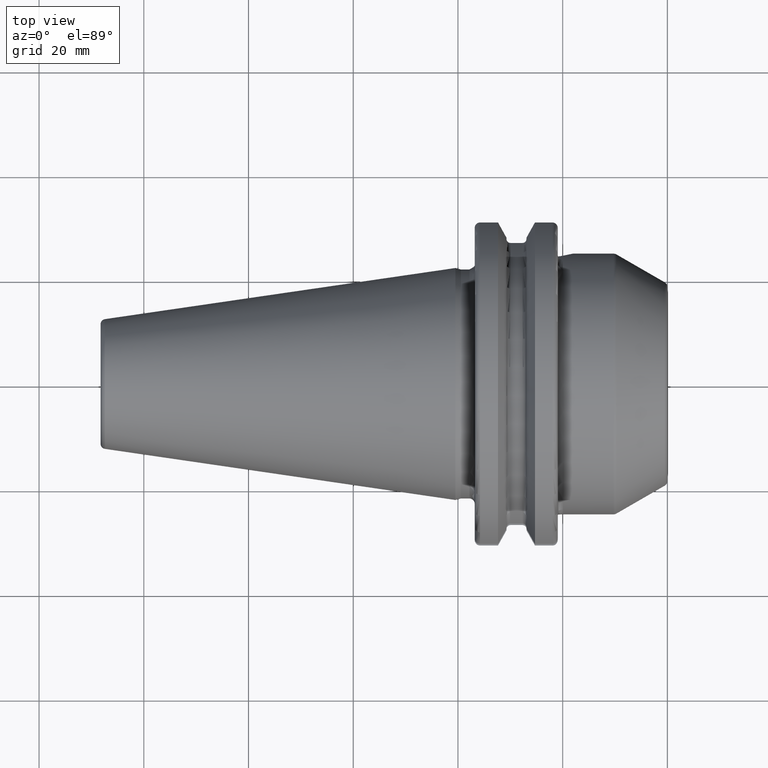
[diagram: clean part render]
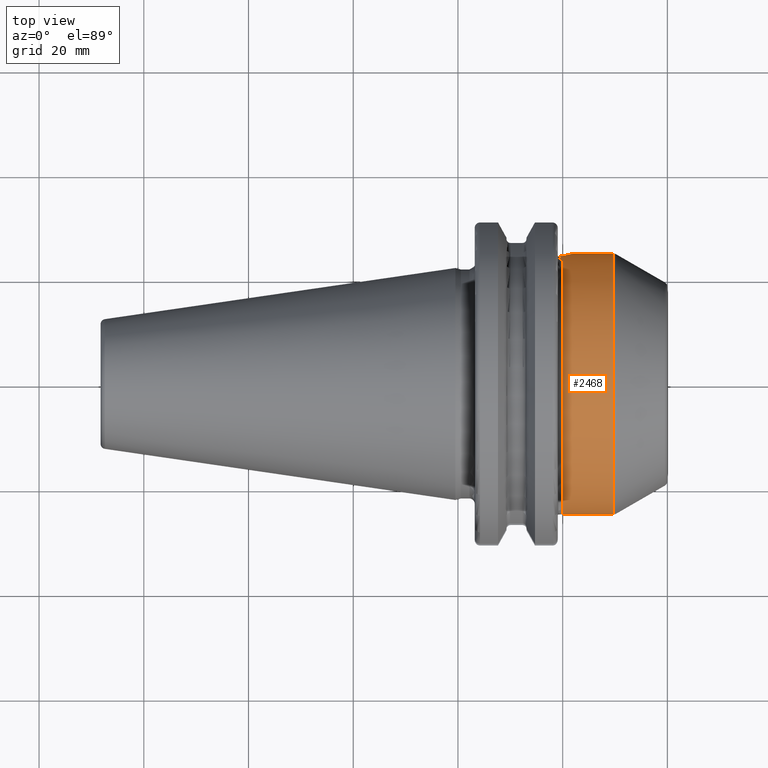
[diagram: same view with one face highlighted and labeled with its STEP entity id]
A machine part, top view. The second image highlights one B-rep face of the part: STEP entity #2468.
In plain terms, the highlighted cylindrical surface (partial cylindrical patch) has radius 24.9 mm, axis along (1, 0, 0).
Its self-contained STEP definition (entity closure, byte-faithful):
#162=DIRECTION('',(-1.E0,0.E0,1.857193474323E-12));
#163=VECTOR('',#162,1.068205080757E1);
#164=CARTESIAN_POINT('',(2.973205080757E1,-2.49E1,-1.984066796590E-11));
#165=LINE('',#164,#163);
#171=DIRECTION('',(-1.E0,0.E0,-2.565733391014E-12));
#172=VECTOR('',#171,7.732050807569E0);
#173=CARTESIAN_POINT('',(2.973205080757E1,2.49E1,1.983990562326E-11));
#174=LINE('',#173,#172);
#175=CARTESIAN_POINT('',(1.905E1,0.E0,0.E0));
#176=DIRECTION('',(1.E0,0.E0,0.E0));
#177=DIRECTION('',(0.E0,-9.979919678715E-1,6.334060359674E-2));
#178=AXIS2_PLACEMENT_3D('',#175,#176,#177);
#198=CARTESIAN_POINT('',(1.905E1,0.E0,0.E0));
#199=DIRECTION('',(1.E0,0.E0,0.E0));
#200=DIRECTION('',(0.E0,9.733571980999E-1,2.292940577229E-1));
#201=AXIS2_PLACEMENT_3D('',#198,#199,#200);
#632=CARTESIAN_POINT('',(2.2E1,2.49E1,0.E0));
#633=CARTESIAN_POINT('',(2.2E1,2.49E1,3.650517726991E-1));
#634=CARTESIAN_POINT('',(2.194412745393E1,2.488419312650E1,1.089351231064E0));
#635=CARTESIAN_POINT('',(2.168346431547E1,2.481217217386E1,2.178293057502E0));
#636=CARTESIAN_POINT('',(2.125802597206E1,2.470006127085E1,3.201900799074E0));
#637=CARTESIAN_POINT('',(2.066488670929E1,2.455525266269E1,4.163557798377E0));
#638=CARTESIAN_POINT('',(1.992834271622E1,2.439459594085E1,5.012603444579E0));
#639=CARTESIAN_POINT('',(1.935741147151E1,2.428796351534E1,5.491358553552E0));
#640=CARTESIAN_POINT('',(1.905E1,2.423659423269E1,5.709422037299E0));
#642=CARTESIAN_POINT('',(2.973205080757E1,0.E0,0.E0));
#643=DIRECTION('',(-1.E0,0.E0,0.E0));
#644=DIRECTION('',(0.E0,-1.E0,0.E0));
#645=AXIS2_PLACEMENT_3D('',#642,#643,#644);
#647=DIRECTION('',(-1.E0,0.E0,3.086420008458E-14));
#648=VECTOR('',#647,1.E0);
#649=CARTESIAN_POINT('',(2.005E1,-2.485E1,1.577181029559E0));
#650=LINE('',#649,#648);
#651=DIRECTION('',(-1.E0,0.E0,0.E0));
#652=VECTOR('',#651,1.E0);
#653=CARTESIAN_POINT('',(2.005E1,2.354570024442E1,8.1E0));
#654=LINE('',#653,#652);
#999=CARTESIAN_POINT('',(2.005E1,0.E0,0.E0));
#1000=DIRECTION('',(1.E0,0.E0,0.E0));
#1001=DIRECTION('',(0.E0,9.456104515831E-1,3.253012048193E-1));
#1002=AXIS2_PLACEMENT_3D('',#999,#1000,#1001);
#1004=CARTESIAN_POINT('',(2.005E1,-2.485E1,1.577181029559E0));
#1678=CARTESIAN_POINT('',(2.973205080757E1,2.49E1,0.E0));
#1679=CARTESIAN_POINT('',(2.973205080757E1,-2.49E1,0.E0));
#1680=VERTEX_POINT('',#1678);
#1681=VERTEX_POINT('',#1679);
#1703=VERTEX_POINT('',#632);
#1704=VERTEX_POINT('',#640);
#1714=CARTESIAN_POINT('',(2.005E1,2.354570024442E1,8.1E0));
#1715=CARTESIAN_POINT('',(1.905E1,2.354570024442E1,8.1E0));
#1716=VERTEX_POINT('',#1714);
#1717=VERTEX_POINT('',#1715);
#1726=VERTEX_POINT('',#1004);
#1730=CARTESIAN_POINT('',(1.905E1,-2.49E1,0.E0));
#1731=VERTEX_POINT('',#1730);
#1732=CARTESIAN_POINT('',(1.905E1,-2.485E1,1.577181029559E0));
#1733=VERTEX_POINT('',#1732);
#2449=CARTESIAN_POINT('',(1.80025E1,0.E0,0.E0));
#2450=DIRECTION('',(1.E0,0.E0,0.E0));
#2451=DIRECTION('',(0.E0,-1.E0,0.E0));
#2452=AXIS2_PLACEMENT_3D('',#2449,#2450,#2451);
#2453=CYLINDRICAL_SURFACE('',#2452,2.49E1);
#2455=ORIENTED_EDGE('',*,*,#2454,.F.);
#2456=ORIENTED_EDGE('',*,*,#1957,.F.);
#2458=ORIENTED_EDGE('',*,*,#2457,.F.);
#2459=ORIENTED_EDGE('',*,*,#1953,.T.);
#2460=ORIENTED_EDGE('',*,*,#1969,.F.);
#2461=ORIENTED_EDGE('',*,*,#2024,.F.);
#2463=ORIENTED_EDGE('',*,*,#2462,.F.);
#2464=ORIENTED_EDGE('',*,*,#2418,.T.);
#2465=ORIENTED_EDGE('',*,*,#1995,.F.);
#2466=EDGE_LOOP('',(#2455,#2456,#2458,#2459,#2460,#2461,#2463,#2464,#2465));
#2467=FACE_OUTER_BOUND('',#2466,.F.);
#2468=ADVANCED_FACE('',(#2467),#2453,.T.);
#179=CIRCLE('',#178,2.49E1);
#202=CIRCLE('',#201,2.49E1);
#641=B_SPLINE_CURVE_WITH_KNOTS('',3,(#632,#633,#634,#635,#636,#637,#638,#639,
#640),.UNSPECIFIED.,.F.,.F.,(4,1,1,1,1,1,4),(0.E0,1.666666666667E-1,
3.333333333333E-1,5.E-1,6.666666666667E-1,8.333333333333E-1,1.E0),
.UNSPECIFIED.);
#646=CIRCLE('',#645,2.49E1);
#1003=CIRCLE('',#1002,2.49E1);
#1953=EDGE_CURVE('',#1681,#1731,#165,.T.);
#1957=EDGE_CURVE('',#1680,#1703,#174,.T.);
#1969=EDGE_CURVE('',#1733,#1731,#179,.T.);
#1995=EDGE_CURVE('',#1704,#1717,#202,.T.);
#2024=EDGE_CURVE('',#1726,#1733,#650,.T.);
#2418=EDGE_CURVE('',#1716,#1717,#654,.T.);
#2454=EDGE_CURVE('',#1703,#1704,#641,.T.);
#2457=EDGE_CURVE('',#1681,#1680,#646,.T.);
#2462=EDGE_CURVE('',#1716,#1726,#1003,.T.);